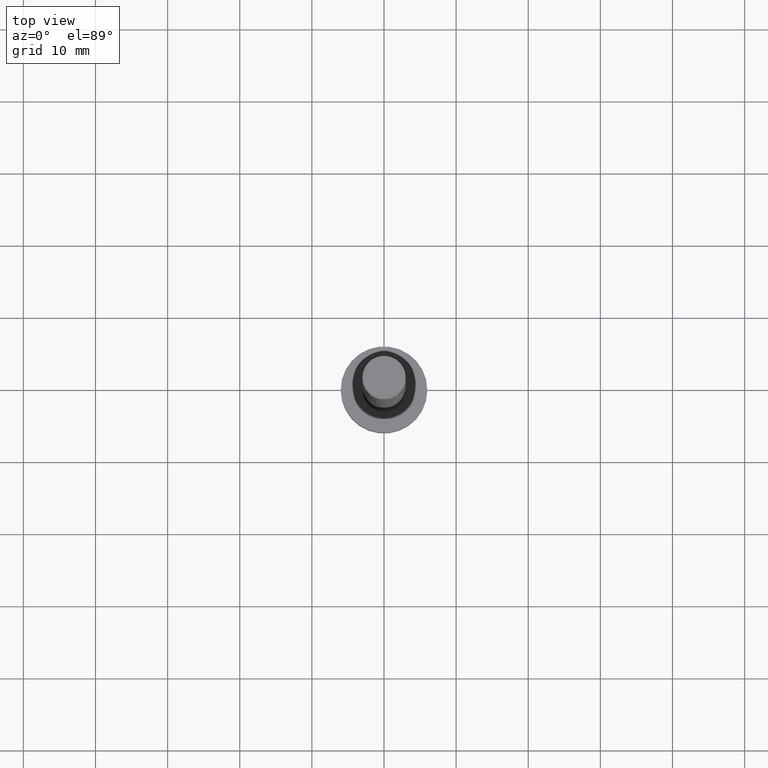
[diagram: clean part render]
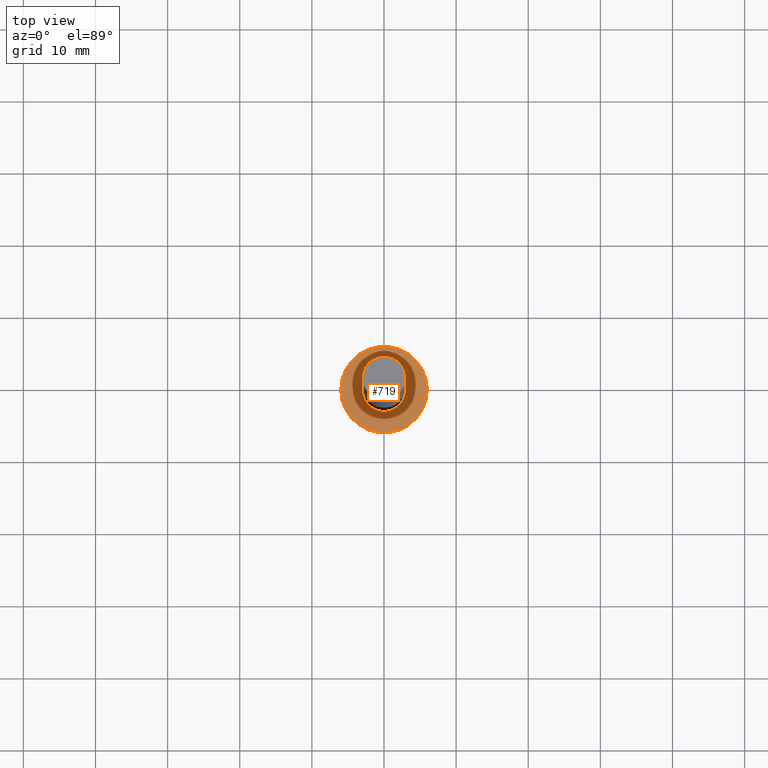
[diagram: same view with one face highlighted and labeled with its STEP entity id]
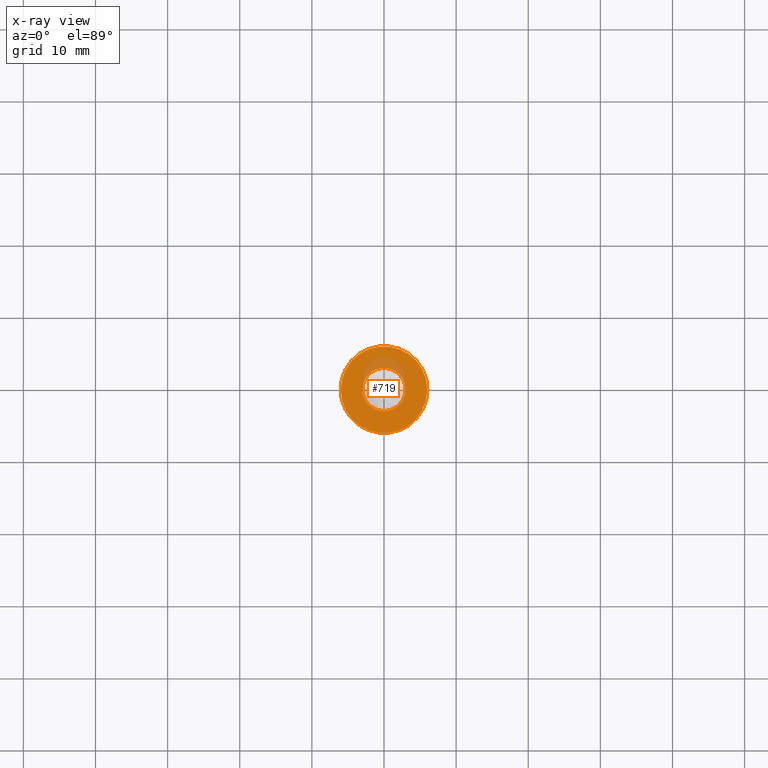
[diagram: x-ray of the same camera — body ghosted, the highlighted face saturated]
A machine part, top view. The second image highlights one B-rep face of the part: STEP entity #719.
The next image is the same camera in x-ray: the body ghosted, the highlighted face saturated — about 12% of this face is hidden behind the body in this view.
In plain terms, the highlighted planar face has unit normal (0, 0, 1).
Its self-contained STEP definition (entity closure, byte-faithful):
#17 = ORIENTED_EDGE ( 'NONE', *, *, #86, .F. ) ;
#86 = EDGE_CURVE ( 'NONE', #270, #1039, #1208, .T. ) ;
#95 = CARTESIAN_POINT ( 'NONE',  ( 0.000000000000000000, 0.000000000000000000, 5.000000000000000000 ) ) ;
#111 = PLANE ( 'NONE',  #1423 ) ;
#197 = CIRCLE ( 'NONE', #775, 6.000000000000000888 ) ;
#207 = VERTEX_POINT ( 'NONE', #1269 ) ;
#263 = DIRECTION ( 'NONE',  ( 0.000000000000000000, 0.000000000000000000, 1.000000000000000000 ) ) ;
#270 = VERTEX_POINT ( 'NONE', #1160 ) ;
#278 = CARTESIAN_POINT ( 'NONE',  ( 0.000000000000000000, 0.000000000000000000, 5.000000000000000000 ) ) ;
#338 = EDGE_CURVE ( 'NONE', #512, #207, #1325, .T. ) ;
#339 = AXIS2_PLACEMENT_3D ( 'NONE', #776, #1359, #1232 ) ;
#362 = DIRECTION ( 'NONE',  ( 1.000000000000000000, 0.000000000000000000, 0.000000000000000000 ) ) ;
#389 = CIRCLE ( 'NONE', #339, 3.000000000000000444 ) ;
#439 = EDGE_LOOP ( 'NONE', ( #17, #1470 ) ) ;
#464 = CARTESIAN_POINT ( 'NONE',  ( -6.000000000000000888, 0.000000000000000000, 5.000000000000000000 ) ) ;
#512 = VERTEX_POINT ( 'NONE', #464 ) ;
#543 = AXIS2_PLACEMENT_3D ( 'NONE', #1390, #1482, #362 ) ;
#558 = DIRECTION ( 'NONE',  ( 0.000000000000000000, 0.000000000000000000, 1.000000000000000000 ) ) ;
#594 = ORIENTED_EDGE ( 'NONE', *, *, #338, .T. ) ;
#643 = EDGE_CURVE ( 'NONE', #1039, #270, #389, .T. ) ;
#674 = FACE_OUTER_BOUND ( 'NONE', #1169, .T. ) ;
#719 = ADVANCED_FACE ( 'NONE', ( #1145, #674 ), #111, .T. ) ;
#775 = AXIS2_PLACEMENT_3D ( 'NONE', #947, #828, #1171 ) ;
#776 = CARTESIAN_POINT ( 'NONE',  ( 0.000000000000000000, 0.000000000000000000, 5.000000000000000000 ) ) ;
#828 = DIRECTION ( 'NONE',  ( 0.000000000000000000, 0.000000000000000000, 1.000000000000000000 ) ) ;
#921 = AXIS2_PLACEMENT_3D ( 'NONE', #278, #263, #1076 ) ;
#947 = CARTESIAN_POINT ( 'NONE',  ( 0.000000000000000000, 0.000000000000000000, 5.000000000000000000 ) ) ;
#990 = EDGE_CURVE ( 'NONE', #207, #512, #197, .T. ) ;
#1011 = DIRECTION ( 'NONE',  ( 1.000000000000000000, 0.000000000000000000, -0.000000000000000000 ) ) ;
#1030 = ORIENTED_EDGE ( 'NONE', *, *, #990, .T. ) ;
#1039 = VERTEX_POINT ( 'NONE', #1065 ) ;
#1065 = CARTESIAN_POINT ( 'NONE',  ( 3.000000000000000444, 3.673940397442060361E-16, 5.000000000000000000 ) ) ;
#1076 = DIRECTION ( 'NONE',  ( 1.000000000000000000, 0.000000000000000000, 0.000000000000000000 ) ) ;
#1145 = FACE_BOUND ( 'NONE', #439, .T. ) ;
#1160 = CARTESIAN_POINT ( 'NONE',  ( -3.000000000000000444, 0.000000000000000000, 5.000000000000000000 ) ) ;
#1169 = EDGE_LOOP ( 'NONE', ( #594, #1030 ) ) ;
#1171 = DIRECTION ( 'NONE',  ( 1.000000000000000000, 0.000000000000000000, 0.000000000000000000 ) ) ;
#1208 = CIRCLE ( 'NONE', #921, 3.000000000000000444 ) ;
#1232 = DIRECTION ( 'NONE',  ( 1.000000000000000000, 0.000000000000000000, 0.000000000000000000 ) ) ;
#1269 = CARTESIAN_POINT ( 'NONE',  ( 6.000000000000000888, 7.347880794884120722E-16, 5.000000000000000000 ) ) ;
#1325 = CIRCLE ( 'NONE', #543, 6.000000000000000888 ) ;
#1359 = DIRECTION ( 'NONE',  ( 0.000000000000000000, 0.000000000000000000, 1.000000000000000000 ) ) ;
#1390 = CARTESIAN_POINT ( 'NONE',  ( 0.000000000000000000, 0.000000000000000000, 5.000000000000000000 ) ) ;
#1423 = AXIS2_PLACEMENT_3D ( 'NONE', #95, #558, #1011 ) ;
#1470 = ORIENTED_EDGE ( 'NONE', *, *, #643, .F. ) ;
#1482 = DIRECTION ( 'NONE',  ( 0.000000000000000000, 0.000000000000000000, 1.000000000000000000 ) ) ;